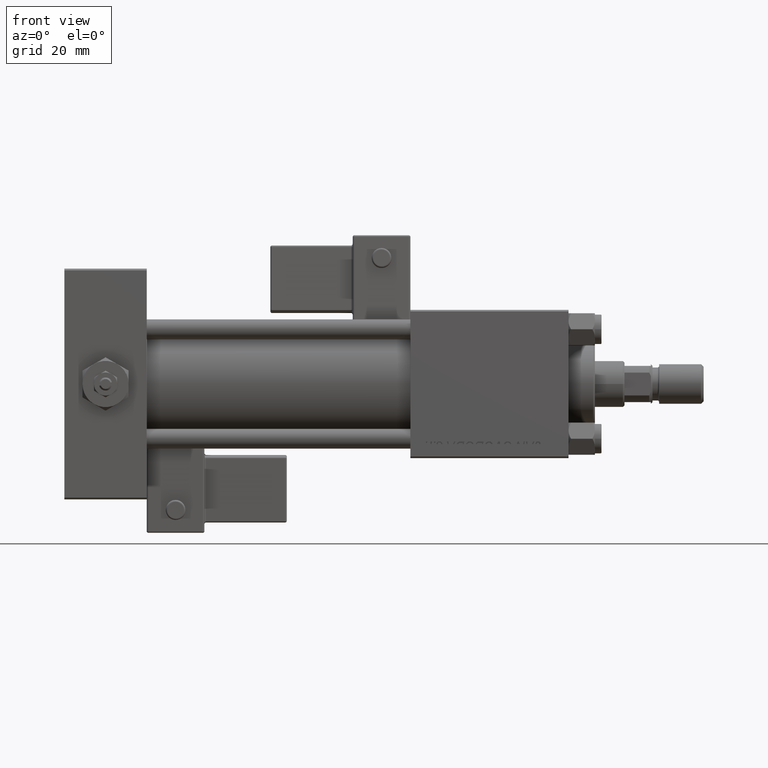
[diagram: clean part render]
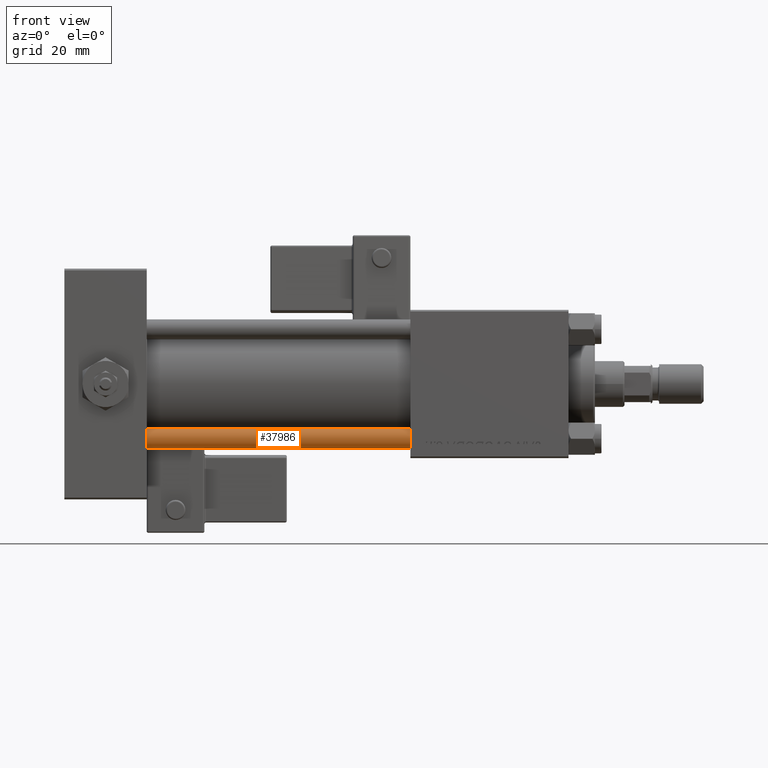
[diagram: same view with one face highlighted and labeled with its STEP entity id]
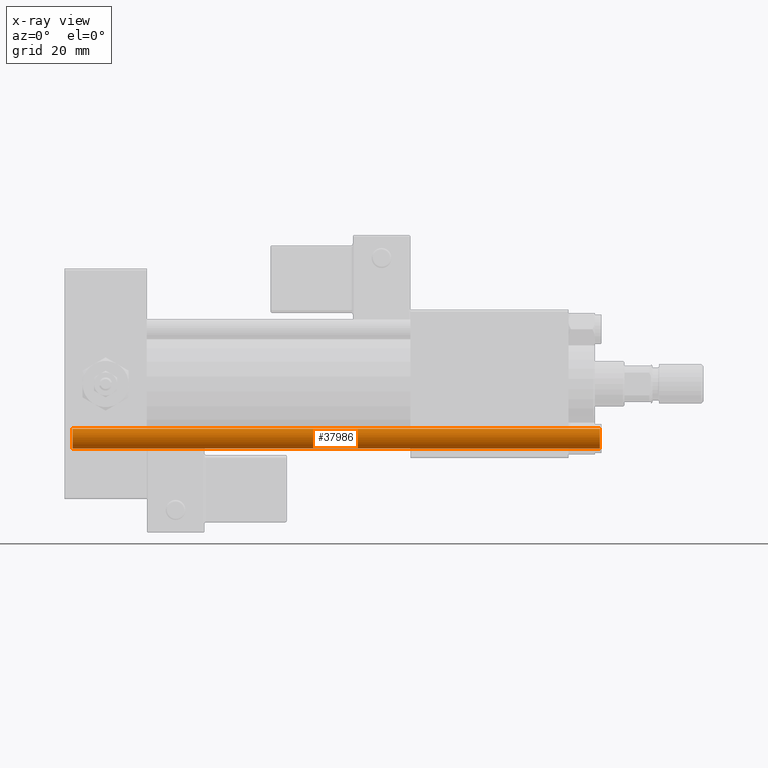
[diagram: x-ray of the same camera — body ghosted, the highlighted face saturated]
A machine part, front view. The second image highlights one B-rep face of the part: STEP entity #37986.
The next image is the same camera in x-ray: the body ghosted, the highlighted face saturated — about 0% of this face is hidden behind the body in this view.
In plain terms, the highlighted cylindrical surface (edge-blend (fillet) strip) has radius 3 mm, axis along (1, -0, -0).
Its self-contained STEP definition (entity closure, byte-faithful):
#4985 = DIRECTION ( 'NONE',  ( 1.000000000000000000, 0.000000000000000000, 0.000000000000000000 ) ) ;
#5582 = VERTEX_POINT ( 'NONE', #43328 ) ;
#9379 = EDGE_CURVE ( 'NONE', #5582, #28398, #52409, .T. ) ;
#13179 = VECTOR ( 'NONE', #48273, 1000.000000000000000 ) ;
#13778 = CARTESIAN_POINT ( 'NONE',  ( 0.000000000000000000, 0.000000000000000000, 0.5000000000000281997 ) ) ;
#14683 = CARTESIAN_POINT ( 'NONE',  ( 3.000000000000000444, 3.673940397442060361E-16, 161.0000000000000000 ) ) ;
#15091 = CIRCLE ( 'NONE', #19490, 3.000000000000000444 ) ;
#15520 = DIRECTION ( 'NONE',  ( -0.000000000000000000, -0.000000000000000000, -1.000000000000000000 ) ) ;
#16814 = ORIENTED_EDGE ( 'NONE', *, *, #9379, .F. ) ;
#19490 = AXIS2_PLACEMENT_3D ( 'NONE', #27562, #20378, #23710 ) ;
#19966 = DIRECTION ( 'NONE',  ( -0.000000000000000000, -0.000000000000000000, -1.000000000000000000 ) ) ;
#20231 = CARTESIAN_POINT ( 'NONE',  ( -3.000000000000000444, 0.000000000000000000, 161.0000000000000000 ) ) ;
#20378 = DIRECTION ( 'NONE',  ( 0.000000000000000000, 0.000000000000000000, -1.000000000000000000 ) ) ;
#23710 = DIRECTION ( 'NONE',  ( 1.000000000000000000, 0.000000000000000000, 0.000000000000000000 ) ) ;
#24103 = LINE ( 'NONE', #20231, #24638 ) ;
#24638 = VECTOR ( 'NONE', #19966, 1000.000000000000000 ) ;
#25139 = CARTESIAN_POINT ( 'NONE',  ( -3.000000000000000444, 0.000000000000000000, 160.4999999999999716 ) ) ;
#25305 = AXIS2_PLACEMENT_3D ( 'NONE', #13778, #43787, #4985 ) ;
#27562 = CARTESIAN_POINT ( 'NONE',  ( 0.000000000000000000, 0.000000000000000000, 160.4999999999999716 ) ) ;
#28398 = VERTEX_POINT ( 'NONE', #54041 ) ;
#30390 = ORIENTED_EDGE ( 'NONE', *, *, #36003, .T. ) ;
#31762 = CYLINDRICAL_SURFACE ( 'NONE', #44726, 3.000000000000000444 ) ;
#32916 = VERTEX_POINT ( 'NONE', #25139 ) ;
#36003 = EDGE_CURVE ( 'NONE', #38288, #28398, #43797, .T. ) ;
#36442 = FACE_OUTER_BOUND ( 'NONE', #53129, .T. ) ;
#37986 = ADVANCED_FACE ( 'NONE', ( #36442 ), #31762, .T. ) ;
#38219 = ORIENTED_EDGE ( 'NONE', *, *, #47452, .T. ) ;
#38288 = VERTEX_POINT ( 'NONE', #44641 ) ;
#43328 = CARTESIAN_POINT ( 'NONE',  ( 3.000000000000000444, 3.673940397442060361E-16, 160.4999999999999716 ) ) ;
#43787 = DIRECTION ( 'NONE',  ( -0.000000000000000000, -0.000000000000000000, 1.000000000000000000 ) ) ;
#43797 = CIRCLE ( 'NONE', #25305, 3.000000000000000444 ) ;
#44172 = ORIENTED_EDGE ( 'NONE', *, *, #45139, .T. ) ;
#44641 = CARTESIAN_POINT ( 'NONE',  ( -3.000000000000000444, 0.000000000000000000, 0.5000000000000281997 ) ) ;
#44726 = AXIS2_PLACEMENT_3D ( 'NONE', #53248, #15520, #49113 ) ;
#45139 = EDGE_CURVE ( 'NONE', #32916, #38288, #24103, .T. ) ;
#47452 = EDGE_CURVE ( 'NONE', #5582, #32916, #15091, .T. ) ;
#48273 = DIRECTION ( 'NONE',  ( -0.000000000000000000, -0.000000000000000000, -1.000000000000000000 ) ) ;
#49113 = DIRECTION ( 'NONE',  ( -1.000000000000000000, 0.000000000000000000, 0.000000000000000000 ) ) ;
#52409 = LINE ( 'NONE', #14683, #13179 ) ;
#53129 = EDGE_LOOP ( 'NONE', ( #16814, #38219, #44172, #30390 ) ) ;
#53248 = CARTESIAN_POINT ( 'NONE',  ( 0.000000000000000000, 0.000000000000000000, 161.0000000000000000 ) ) ;
#54041 = CARTESIAN_POINT ( 'NONE',  ( 3.000000000000000444, 3.673940397442060361E-16, 0.5000000000000281997 ) ) ;